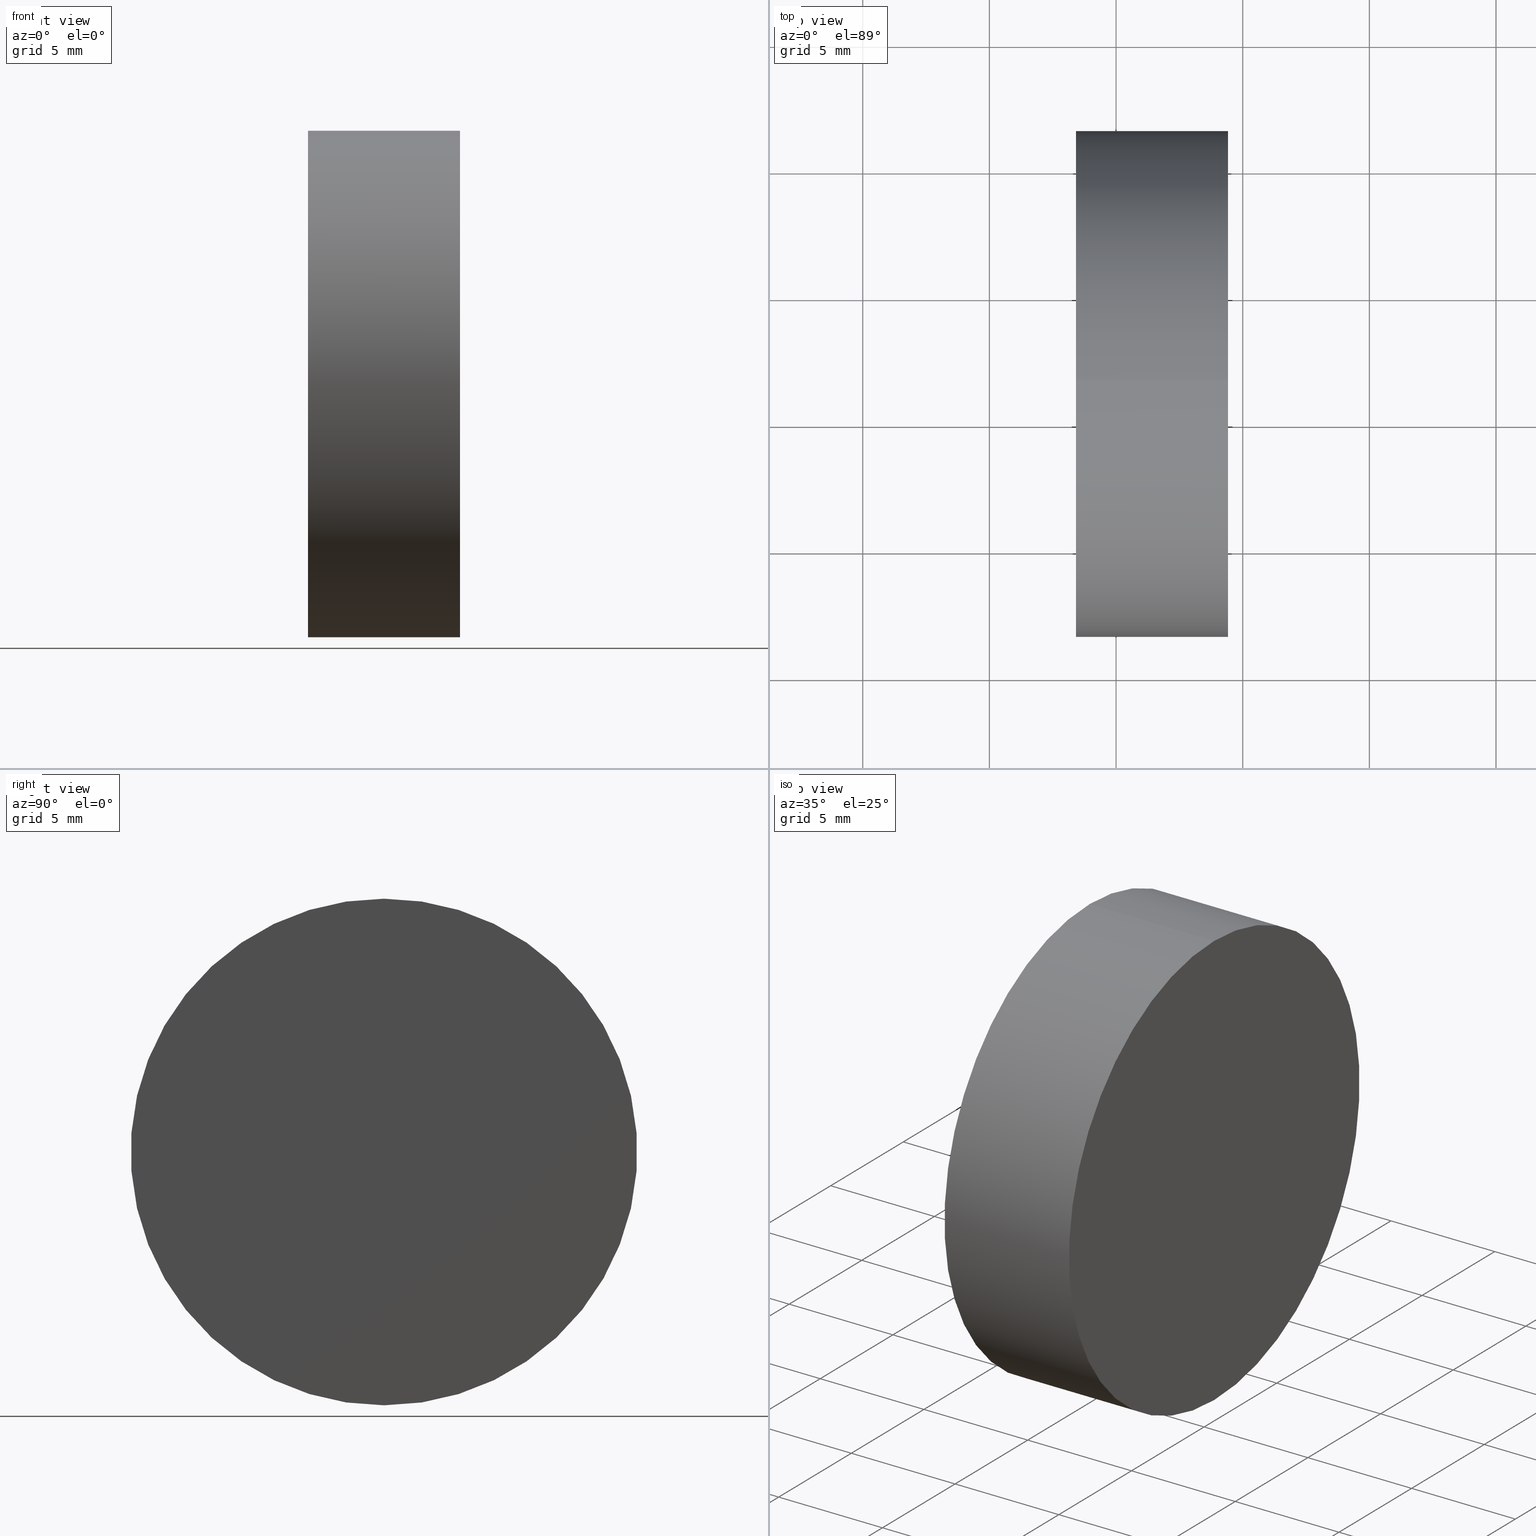
[diagram: canonical four-view strip — front | top / right | iso, engineering-drawing reading convention]
A machine part, canonical four-view strip (front | top / right | iso — engineering-drawing reading convention). The complete STEP part file that produces these views, byte-faithful:
ISO-10303-21;
HEADER;
FILE_DESCRIPTION (( 'STEP AP214' ),
    '1' );
FILE_NAME ('260071.STEP',
    '2019-07-16T03:24:09',
    ( '' ),
    ( '' ),
    'SwSTEP 2.0',
    'SolidWorks 2016',
    '' );
FILE_SCHEMA (( 'AUTOMOTIVE_DESIGN' ));
ENDSEC;

DATA;
#1 = AXIS2_PLACEMENT_3D ( 'NONE', #31, #93, #44 ) ;
#2 = ADVANCED_BREP_SHAPE_REPRESENTATION ( '260071', ( #128, #11 ), #23 ) ;
#3 = FACE_OUTER_BOUND ( 'NONE', #135, .T. ) ;
#4 = UNCERTAINTY_MEASURE_WITH_UNIT (LENGTH_MEASURE( 1.000000000000000100E-005 ), #118, 'distance_accuracy_value', 'NONE');
#5 = CARTESIAN_POINT ( 'NONE',  ( 0.0000000000000000000, 0.0000000000000000000, 0.0000000000000000000 ) ) ;
#6 = DIRECTION ( 'NONE',  ( 0.0000000000000000000, 0.0000000000000000000, 1.000000000000000000 ) ) ;
#7 = CIRCLE ( 'NONE', #1, 9.999999990000000900 ) ;
#8 = LINE ( 'NONE', #16, #95 ) ;
#9 = PRESENTATION_STYLE_ASSIGNMENT (( #77 ) ) ;
#10 = CIRCLE ( 'NONE', #25, 9.999999990000000900 ) ;
#11 = AXIS2_PLACEMENT_3D ( 'NONE', #5, #43, #138 ) ;
#12 = UNCERTAINTY_MEASURE_WITH_UNIT (LENGTH_MEASURE( 1.000000000000000100E-005 ), #80, 'distance_accuracy_value', 'NONE');
#13 = AXIS2_PLACEMENT_3D ( 'NONE', #83, #41, #73 ) ;
#14 = FILL_AREA_STYLE_COLOUR ( '', #132 ) ;
#15 =( NAMED_UNIT ( * ) PLANE_ANGLE_UNIT ( ) SI_UNIT ( $, .RADIAN. ) );
#16 = CARTESIAN_POINT ( 'NONE',  ( 169.3338678257435100, 51.52878618114815600, 9.999999990000000900 ) ) ;
#17 = ORIENTED_EDGE ( 'NONE', *, *, #115, .T. ) ;
#18 = CARTESIAN_POINT ( 'NONE',  ( 179.4186645271068100, 51.52878618114815600, -9.999999990000000900 ) ) ;
#19 = ORIENTED_EDGE ( 'NONE', *, *, #20, .T. ) ;
#20 = EDGE_CURVE ( 'NONE', #113, #78, #32, .T. ) ;
#21 = FACE_OUTER_BOUND ( 'NONE', #67, .T. ) ;
#22 = ORIENTED_EDGE ( 'NONE', *, *, #112, .F. ) ;
#23 =( GEOMETRIC_REPRESENTATION_CONTEXT ( 3 ) GLOBAL_UNCERTAINTY_ASSIGNED_CONTEXT ( ( #12 ) ) GLOBAL_UNIT_ASSIGNED_CONTEXT ( ( #80, #15, #117 ) ) REPRESENTATION_CONTEXT ( 'NONE', 'WORKASPACE' ) );
#24 = ADVANCED_FACE ( 'NONE', ( #82 ), #68, .F. ) ;
#25 = AXIS2_PLACEMENT_3D ( 'NONE', #86, #35, #111 ) ;
#26 = ORIENTED_EDGE ( 'NONE', *, *, #130, .T. ) ;
#27 = ADVANCED_FACE ( 'NONE', ( #54 ), #127, .F. ) ;
#28 = COLOUR_RGB ( '',1.000000000000000000, 1.000000000000000000, 1.000000000000000000 ) ;
#29 = CARTESIAN_POINT ( 'NONE',  ( 169.3338678257435100, 51.52878618114815600, 0.0000000000000000000 ) ) ;
#30 = CARTESIAN_POINT ( 'NONE',  ( 173.4186645331067800, 51.52878618114815600, 0.0000000000000000000 ) ) ;
#31 = CARTESIAN_POINT ( 'NONE',  ( 179.4186645271068100, 51.52878618114815600, 0.0000000000000000000 ) ) ;
#32 = CIRCLE ( 'NONE', #79, 9.999999990000000900 ) ;
#33 = UNCERTAINTY_MEASURE_WITH_UNIT (LENGTH_MEASURE( 1.000000000000000100E-005 ), #114, 'distance_accuracy_value', 'NONE');
#34 = DIRECTION ( 'NONE',  ( -1.000000000000000000, -0.0000000000000000000, -0.0000000000000000000 ) ) ;
#35 = DIRECTION ( 'NONE',  ( -1.000000000000000000, -0.0000000000000000000, -0.0000000000000000000 ) ) ;
#36 = SHAPE_DEFINITION_REPRESENTATION ( #74, #2 ) ;
#37 = FILL_AREA_STYLE ('',( #47 ) ) ;
#38 = SURFACE_STYLE_USAGE ( .BOTH. , #121 ) ;
#39 = STYLED_ITEM ( 'NONE', ( #9 ), #2 ) ;
#40 = PRODUCT ( '260071', '260071', '', ( #70 ) ) ;
#41 = DIRECTION ( 'NONE',  ( -1.000000000000000000, -0.0000000000000000000, -0.0000000000000000000 ) ) ;
#42 = DIRECTION ( 'NONE',  ( -1.000000000000000000, -0.0000000000000000000, -0.0000000000000000000 ) ) ;
#43 = DIRECTION ( 'NONE',  ( 0.0000000000000000000, 0.0000000000000000000, 1.000000000000000000 ) ) ;
#44 = DIRECTION ( 'NONE',  ( 0.0000000000000000000, 0.0000000000000000000, 1.000000000000000000 ) ) ;
#45 = CARTESIAN_POINT ( 'NONE',  ( 173.4186645331067800, 51.52878618114815600, 0.0000000000000000000 ) ) ;
#46 = DIRECTION ( 'NONE',  ( 0.0000000000000000000, 0.0000000000000000000, -1.000000000000000000 ) ) ;
#47 = FILL_AREA_STYLE_COLOUR ( '', #28 ) ;
#48 = PRODUCT_RELATED_PRODUCT_CATEGORY ( 'part', '', ( #40 ) ) ;
#49 = ORIENTED_EDGE ( 'NONE', *, *, #69, .F. ) ;
#50 = PRESENTATION_LAYER_ASSIGNMENT (  '', '', ( #39 ) ) ;
#51 = PRESENTATION_STYLE_ASSIGNMENT (( #38 ) ) ;
#52 =( NAMED_UNIT ( * ) PLANE_ANGLE_UNIT ( ) SI_UNIT ( $, .RADIAN. ) );
#53 = ADVANCED_FACE ( 'NONE', ( #3 ), #65, .T. ) ;
#54 = FACE_OUTER_BOUND ( 'NONE', #99, .T. ) ;
#55 = EDGE_CURVE ( 'NONE', #137, #78, #8, .T. ) ;
#56 = DIRECTION ( 'NONE',  ( 0.0000000000000000000, 0.0000000000000000000, 1.000000000000000000 ) ) ;
#57 =( NAMED_UNIT ( * ) SI_UNIT ( $, .STERADIAN. ) SOLID_ANGLE_UNIT ( ) );
#58 = CARTESIAN_POINT ( 'NONE',  ( 169.3338678257435100, 51.52878618114815600, 0.0000000000000000000 ) ) ;
#59 = CLOSED_SHELL ( 'NONE', ( #53, #24, #91, #27 ) ) ;
#60 = SURFACE_SIDE_STYLE ('',( #100 ) ) ;
#61 = DIRECTION ( 'NONE',  ( -1.000000000000000000, 0.0000000000000000000, -0.0000000000000000000 ) ) ;
#62 = DIRECTION ( 'NONE',  ( -0.0000000000000000000, 0.0000000000000000000, 1.000000000000000000 ) ) ;
#63 = MECHANICAL_DESIGN_GEOMETRIC_PRESENTATION_REPRESENTATION (  '', ( #39 ), #71 ) ;
#64 = ORIENTED_EDGE ( 'NONE', *, *, #115, .F. ) ;
#65 = CYLINDRICAL_SURFACE ( 'NONE', #102, 9.999999990000000900 ) ;
#66 = PRODUCT_DEFINITION ( 'δ֪', '', #90, #124 ) ;
#67 = EDGE_LOOP ( 'NONE', ( #64, #92, #131, #72 ) ) ;
#68 = PLANE ( 'NONE',  #81 ) ;
#69 = EDGE_CURVE ( 'NONE', #137, #89, #7, .T. ) ;
#70 = PRODUCT_CONTEXT ( 'NONE', #85, 'mechanical' ) ;
#71 =( GEOMETRIC_REPRESENTATION_CONTEXT ( 3 ) GLOBAL_UNCERTAINTY_ASSIGNED_CONTEXT ( ( #4 ) ) GLOBAL_UNIT_ASSIGNED_CONTEXT ( ( #118, #126, #57 ) ) REPRESENTATION_CONTEXT ( 'NONE', 'WORKASPACE' ) );
#72 = ORIENTED_EDGE ( 'NONE', *, *, #20, .F. ) ;
#73 = DIRECTION ( 'NONE',  ( 0.0000000000000000000, 0.0000000000000000000, 1.000000000000000000 ) ) ;
#74 = PRODUCT_DEFINITION_SHAPE ( 'NONE', 'NONE',  #66 ) ;
#75 = DIRECTION ( 'NONE',  ( -1.000000000000000000, -0.0000000000000000000, -0.0000000000000000000 ) ) ;
#76 = APPLICATION_PROTOCOL_DEFINITION ( 'draft international standard', 'automotive_design', 1998, #94 ) ;
#77 = SURFACE_STYLE_USAGE ( .BOTH. , #60 ) ;
#78 = VERTEX_POINT ( 'NONE', #104 ) ;
#79 = AXIS2_PLACEMENT_3D ( 'NONE', #45, #120, #56 ) ;
#80 =( LENGTH_UNIT ( ) NAMED_UNIT ( * ) SI_UNIT ( .MILLI., .METRE. ) );
#81 = AXIS2_PLACEMENT_3D ( 'NONE', #109, #61, #62 ) ;
#82 = FACE_OUTER_BOUND ( 'NONE', #123, .T. ) ;
#83 = CARTESIAN_POINT ( 'NONE',  ( 173.4186645331067800, 51.52878618114815600, 0.0000000000000000000 ) ) ;
#84 = AXIS2_PLACEMENT_3D ( 'NONE', #58, #103, #139 ) ;
#85 = APPLICATION_CONTEXT ( 'automotive_design' ) ;
#86 = CARTESIAN_POINT ( 'NONE',  ( 179.4186645271068100, 51.52878618114815600, 0.0000000000000000000 ) ) ;
#87 = CARTESIAN_POINT ( 'NONE',  ( 173.4186645331067800, 51.52878618114815600, -9.999999990000000900 ) ) ;
#88 =( NAMED_UNIT ( * ) SI_UNIT ( $, .STERADIAN. ) SOLID_ANGLE_UNIT ( ) );
#89 = VERTEX_POINT ( 'NONE', #18 ) ;
#90 = PRODUCT_DEFINITION_FORMATION_WITH_SPECIFIED_SOURCE ( '�κ�', '', #40, .NOT_KNOWN. ) ;
#91 = ADVANCED_FACE ( 'NONE', ( #21 ), #133, .T. ) ;
#92 = ORIENTED_EDGE ( 'NONE', *, *, #112, .T. ) ;
#93 = DIRECTION ( 'NONE',  ( -1.000000000000000000, -0.0000000000000000000, -0.0000000000000000000 ) ) ;
#94 = APPLICATION_CONTEXT ( 'automotive_design' ) ;
#95 = VECTOR ( 'NONE', #75, 1000.000000000000000 ) ;
#96 = ORIENTED_EDGE ( 'NONE', *, *, #130, .F. ) ;
#97 = ORIENTED_EDGE ( 'NONE', *, *, #69, .T. ) ;
#98 = CIRCLE ( 'NONE', #13, 9.999999990000000900 ) ;
#99 = EDGE_LOOP ( 'NONE', ( #26, #19 ) ) ;
#100 = SURFACE_STYLE_FILL_AREA ( #108 ) ;
#101 = VECTOR ( 'NONE', #34, 1000.000000000000000 ) ;
#102 = AXIS2_PLACEMENT_3D ( 'NONE', #29, #42, #6 ) ;
#103 = DIRECTION ( 'NONE',  ( -1.000000000000000000, -0.0000000000000000000, -0.0000000000000000000 ) ) ;
#104 = CARTESIAN_POINT ( 'NONE',  ( 173.4186645331067800, 51.52878618114815600, 9.999999990000000900 ) ) ;
#105 = ORIENTED_EDGE ( 'NONE', *, *, #55, .F. ) ;
#106 = CARTESIAN_POINT ( 'NONE',  ( 169.3338678257435100, 51.52878618114815600, -9.999999990000000900 ) ) ;
#107 = STYLED_ITEM ( 'NONE', ( #51 ), #128 ) ;
#108 = FILL_AREA_STYLE ('',( #14 ) ) ;
#109 = CARTESIAN_POINT ( 'NONE',  ( 179.4186645271068100, 51.52878618114815600, 0.0000000000000000000 ) ) ;
#110 = CARTESIAN_POINT ( 'NONE',  ( 179.4186645271068100, 51.52878618114815600, 9.999999990000000900 ) ) ;
#111 = DIRECTION ( 'NONE',  ( 0.0000000000000000000, 0.0000000000000000000, 1.000000000000000000 ) ) ;
#112 = EDGE_CURVE ( 'NONE', #89, #137, #10, .T. ) ;
#113 = VERTEX_POINT ( 'NONE', #87 ) ;
#114 =( LENGTH_UNIT ( ) NAMED_UNIT ( * ) SI_UNIT ( .MILLI., .METRE. ) );
#115 = EDGE_CURVE ( 'NONE', #89, #113, #122, .T. ) ;
#116 = PRESENTATION_LAYER_ASSIGNMENT (  '', '', ( #107 ) ) ;
#117 =( NAMED_UNIT ( * ) SI_UNIT ( $, .STERADIAN. ) SOLID_ANGLE_UNIT ( ) );
#118 =( LENGTH_UNIT ( ) NAMED_UNIT ( * ) SI_UNIT ( .MILLI., .METRE. ) );
#119 = APPLICATION_PROTOCOL_DEFINITION ( 'draft international standard', 'automotive_design', 1998, #85 ) ;
#120 = DIRECTION ( 'NONE',  ( -1.000000000000000000, -0.0000000000000000000, -0.0000000000000000000 ) ) ;
#121 = SURFACE_SIDE_STYLE ('',( #134 ) ) ;
#122 = LINE ( 'NONE', #106, #101 ) ;
#123 = EDGE_LOOP ( 'NONE', ( #49, #22 ) ) ;
#124 = PRODUCT_DEFINITION_CONTEXT ( 'detailed design', #94, 'design' ) ;
#125 = AXIS2_PLACEMENT_3D ( 'NONE', #30, #136, #46 ) ;
#126 =( NAMED_UNIT ( * ) PLANE_ANGLE_UNIT ( ) SI_UNIT ( $, .RADIAN. ) );
#127 = PLANE ( 'NONE',  #125 ) ;
#128 = MANIFOLD_SOLID_BREP ( '��ת1', #59 ) ;
#129 = MECHANICAL_DESIGN_GEOMETRIC_PRESENTATION_REPRESENTATION (  '', ( #107 ), #140 ) ;
#130 = EDGE_CURVE ( 'NONE', #78, #113, #98, .T. ) ;
#131 = ORIENTED_EDGE ( 'NONE', *, *, #55, .T. ) ;
#132 = COLOUR_RGB ( '',1.000000000000000000, 1.000000000000000000, 1.000000000000000000 ) ;
#133 = CYLINDRICAL_SURFACE ( 'NONE', #84, 9.999999990000000900 ) ;
#134 = SURFACE_STYLE_FILL_AREA ( #37 ) ;
#135 = EDGE_LOOP ( 'NONE', ( #97, #17, #96, #105 ) ) ;
#136 = DIRECTION ( 'NONE',  ( 1.000000000000000000, 0.0000000000000000000, 0.0000000000000000000 ) ) ;
#137 = VERTEX_POINT ( 'NONE', #110 ) ;
#138 = DIRECTION ( 'NONE',  ( 1.000000000000000000, 0.0000000000000000000, 0.0000000000000000000 ) ) ;
#139 = DIRECTION ( 'NONE',  ( 0.0000000000000000000, 0.0000000000000000000, 1.000000000000000000 ) ) ;
#140 =( GEOMETRIC_REPRESENTATION_CONTEXT ( 3 ) GLOBAL_UNCERTAINTY_ASSIGNED_CONTEXT ( ( #33 ) ) GLOBAL_UNIT_ASSIGNED_CONTEXT ( ( #114, #52, #88 ) ) REPRESENTATION_CONTEXT ( 'NONE', 'WORKASPACE' ) );
ENDSEC;
END-ISO-10303-21;
